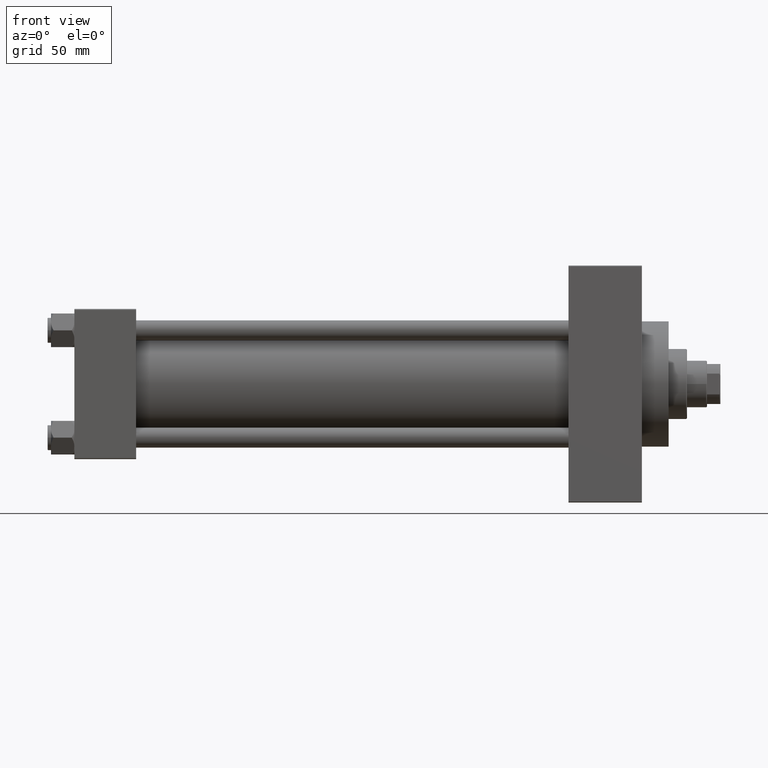
[diagram: clean part render]
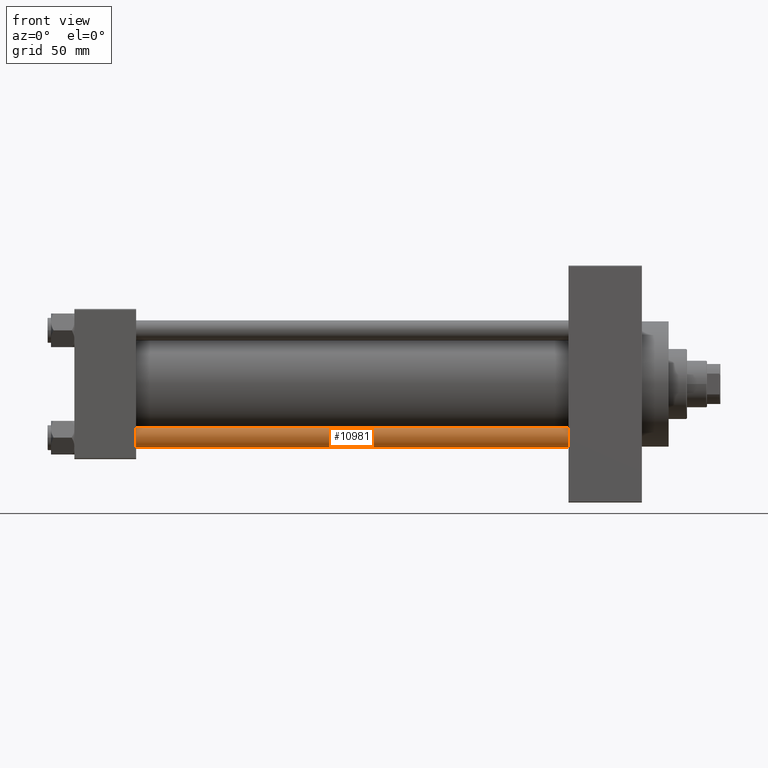
[diagram: same view with one face highlighted and labeled with its STEP entity id]
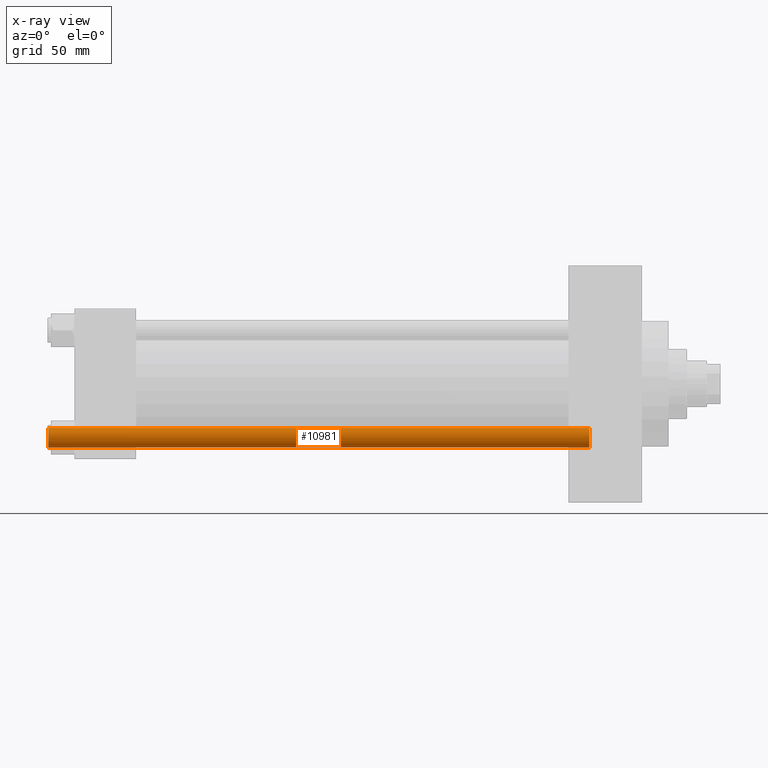
[diagram: x-ray of the same camera — body ghosted, the highlighted face saturated]
A machine part, front view. The second image highlights one B-rep face of the part: STEP entity #10981.
The next image is the same camera in x-ray: the body ghosted, the highlighted face saturated — about 0% of this face is hidden behind the body in this view.
In plain terms, the highlighted cylindrical surface (edge-blend (fillet) strip) has radius 6 mm, axis along (-1, 0, 0).
Its self-contained STEP definition (entity closure, byte-faithful):
#866 = VERTEX_POINT ( 'NONE', #13135 ) ;
#4129 = ORIENTED_EDGE ( 'NONE', *, *, #48001, .F. ) ;
#4621 = VECTOR ( 'NONE', #19554, 1000.000000000000000 ) ;
#8235 = FACE_OUTER_BOUND ( 'NONE', #16819, .T. ) ;
#8491 = CYLINDRICAL_SURFACE ( 'NONE', #36958, 6.000000000000000888 ) ;
#9989 = DIRECTION ( 'NONE',  ( -0.000000000000000000, -0.000000000000000000, -1.000000000000000000 ) ) ;
#10981 = ADVANCED_FACE ( 'NONE', ( #8235 ), #8491, .T. ) ;
#12899 = DIRECTION ( 'NONE',  ( 1.000000000000000000, 0.000000000000000000, 0.000000000000000000 ) ) ;
#13135 = CARTESIAN_POINT ( 'NONE',  ( -6.000000000000000888, 0.000000000000000000, 324.5000000000001137 ) ) ;
#14219 = CARTESIAN_POINT ( 'NONE',  ( -6.000000000000000888, 0.000000000000000000, 325.0000000000000000 ) ) ;
#16649 = CARTESIAN_POINT ( 'NONE',  ( 0.000000000000000000, 0.000000000000000000, 0.5000000000000004441 ) ) ;
#16705 = DIRECTION ( 'NONE',  ( -0.000000000000000000, -0.000000000000000000, -1.000000000000000000 ) ) ;
#16819 = EDGE_LOOP ( 'NONE', ( #41935, #26101, #42049, #4129 ) ) ;
#17483 = EDGE_CURVE ( 'NONE', #866, #18652, #33849, .T. ) ;
#18652 = VERTEX_POINT ( 'NONE', #37405 ) ;
#19539 = AXIS2_PLACEMENT_3D ( 'NONE', #22532, #33758, #45470 ) ;
#19554 = DIRECTION ( 'NONE',  ( -0.000000000000000000, -0.000000000000000000, -1.000000000000000000 ) ) ;
#20298 = LINE ( 'NONE', #34994, #4621 ) ;
#22532 = CARTESIAN_POINT ( 'NONE',  ( 0.000000000000000000, 0.000000000000000000, 324.5000000000001137 ) ) ;
#23695 = DIRECTION ( 'NONE',  ( -1.000000000000000000, 0.000000000000000000, 0.000000000000000000 ) ) ;
#25935 = EDGE_CURVE ( 'NONE', #31666, #40738, #32899, .T. ) ;
#26101 = ORIENTED_EDGE ( 'NONE', *, *, #44296, .T. ) ;
#28604 = DIRECTION ( 'NONE',  ( -0.000000000000000000, -0.000000000000000000, 1.000000000000000000 ) ) ;
#29337 = CARTESIAN_POINT ( 'NONE',  ( -6.000000000000000888, 0.000000000000000000, 0.5000000000000004441 ) ) ;
#31666 = VERTEX_POINT ( 'NONE', #41550 ) ;
#31911 = CARTESIAN_POINT ( 'NONE',  ( 0.000000000000000000, 0.000000000000000000, 325.0000000000000000 ) ) ;
#32899 = CIRCLE ( 'NONE', #44828, 6.000000000000000888 ) ;
#33167 = LINE ( 'NONE', #14219, #47310 ) ;
#33758 = DIRECTION ( 'NONE',  ( 0.000000000000000000, 0.000000000000000000, -1.000000000000000000 ) ) ;
#33849 = CIRCLE ( 'NONE', #19539, 6.000000000000000888 ) ;
#34994 = CARTESIAN_POINT ( 'NONE',  ( 6.000000000000000888, 7.347880794884120722E-16, 325.0000000000000000 ) ) ;
#36958 = AXIS2_PLACEMENT_3D ( 'NONE', #31911, #16705, #23695 ) ;
#37405 = CARTESIAN_POINT ( 'NONE',  ( 6.000000000000000888, 7.347880794884120722E-16, 324.5000000000001137 ) ) ;
#40738 = VERTEX_POINT ( 'NONE', #29337 ) ;
#41550 = CARTESIAN_POINT ( 'NONE',  ( 6.000000000000000888, 7.347880794884120722E-16, 0.5000000000000004441 ) ) ;
#41935 = ORIENTED_EDGE ( 'NONE', *, *, #17483, .T. ) ;
#42049 = ORIENTED_EDGE ( 'NONE', *, *, #25935, .T. ) ;
#44296 = EDGE_CURVE ( 'NONE', #18652, #31666, #20298, .T. ) ;
#44828 = AXIS2_PLACEMENT_3D ( 'NONE', #16649, #28604, #12899 ) ;
#45470 = DIRECTION ( 'NONE',  ( 1.000000000000000000, 0.000000000000000000, 0.000000000000000000 ) ) ;
#47310 = VECTOR ( 'NONE', #9989, 1000.000000000000000 ) ;
#48001 = EDGE_CURVE ( 'NONE', #866, #40738, #33167, .T. ) ;